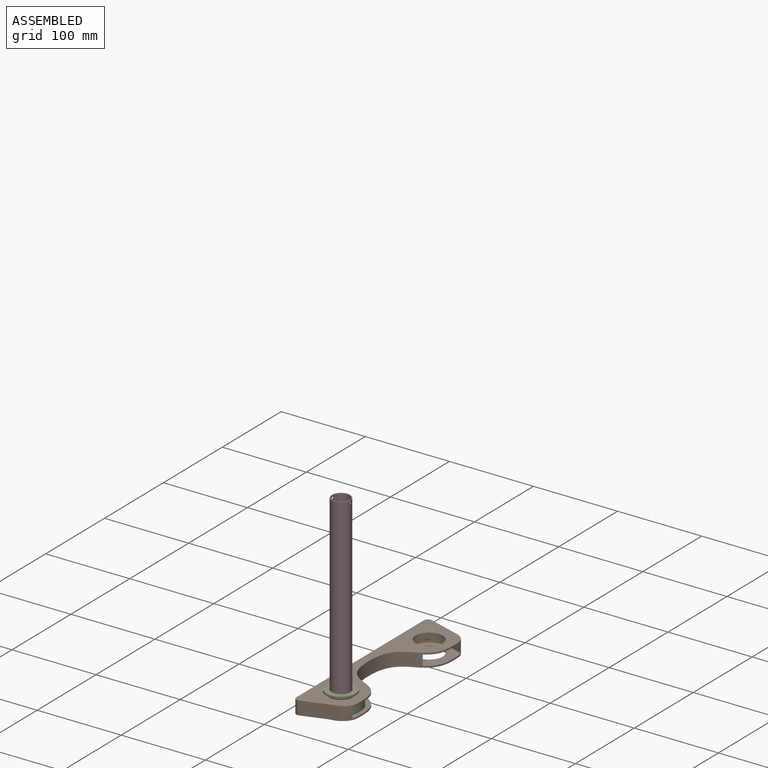
[diagram: assembled view]
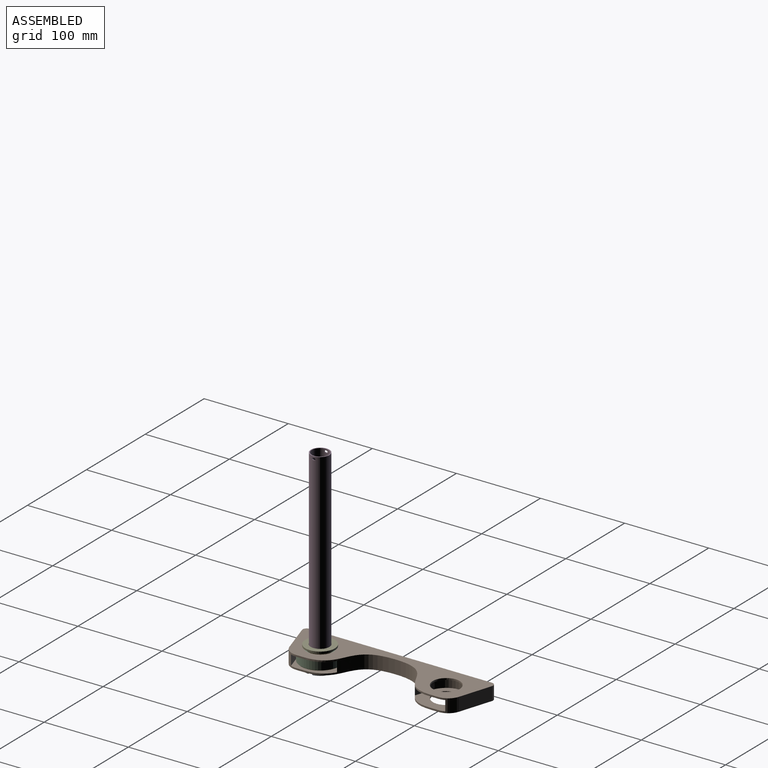
[diagram: assembled view, second angle]
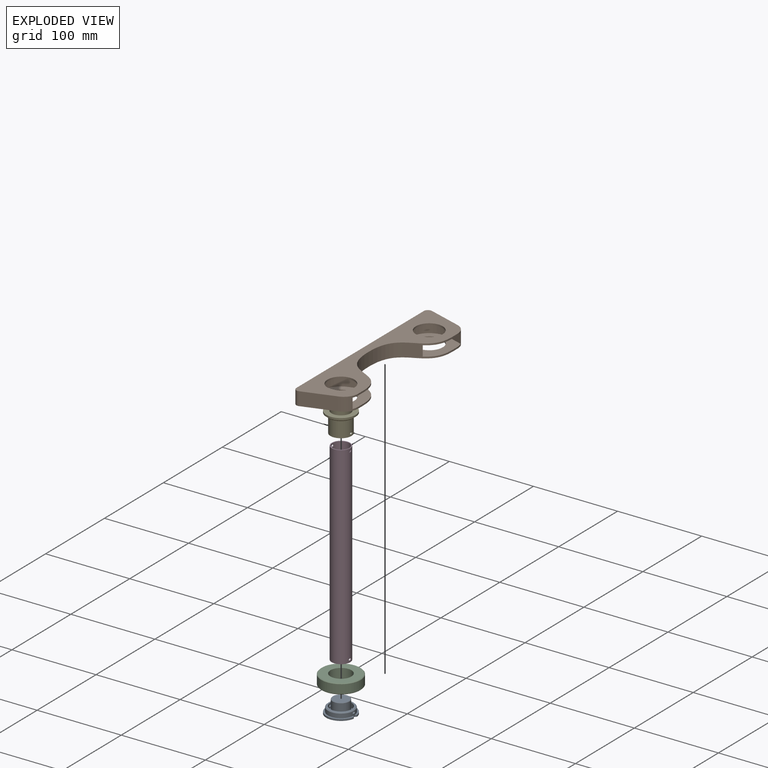
[diagram: exploded view]
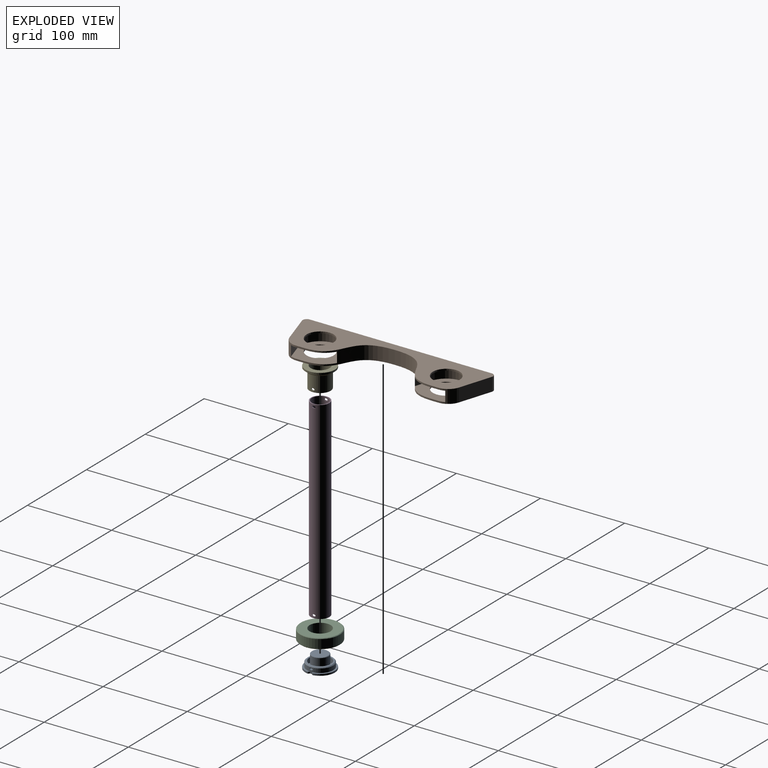
[diagram: exploded view, second angle]
ASSEMBLY  parts=5 mates=8
PART A: 24 faces, bbox 34.3x35x16 mm
  f0: cylinder r=17.5mm len=34.18mm, axis (0,0,1), area 94.8mm2, adj f2,f3,f18,f20
  f1: cylinder r=17.5mm len=34.18mm, axis (0,0,1), area 94.8mm2, adj f2,f10,f17,f19
  f2: plane 35x34.28mm, normal (0,0,-1), area 946.6mm2, adj f0,f1,f6,f16,f17,f18,f19,f20
  f3: plane 34.28x16.89mm, normal (0,0,1), area 95.9mm2, adj f0,f6,f18,f20,f22
  f4: cylinder r=9.95mm len=19.9mm, axis (0,0,-1), area 828.2mm2, adj f7,f13,f14
  f5: cylinder r=12.75mm len=25.5mm, axis (0,0,-1), area 464.8mm2, adj f7,f9,f11,f12
  f6: cylinder r=15.5mm len=31mm, axis (0,0,-1), area 466.2mm2, adj f2,f3,f10,f11,f12,f15,f16,f21
  f7: plane 25.5x25.5mm, normal (0,0,1), area 199.7mm2, adj f4,f5
  f8: plane 18.9x18.9mm, normal (0,0,1), area 280.6mm2, adj f14
  f9: plane 29x29mm, normal (0,0,1), area 149.8mm2, adj f5,f23
  f10: plane 34.28x16.89mm, normal (0,0,1), area 95.9mm2, adj f1,f6,f17,f19,f21
  f11: extruded ~4x2.85mm, area 28.4mm2, adj f5,f6,f15,f16
  f12: extruded ~4x2.91mm, area 28.6mm2, adj f5,f6
  f13: extruded ~19.9x4mm, area 204mm2, adj f4
  f14: cone r=9.45mm half-angle=45deg, axis (0,0,-1), area 43.1mm2, adj f4,f8
  f15: plane 2.7x1.14mm, normal (1,0,0), area 2.4mm2, adj f6,f11,f23
  f16: plane 4.08x2.7mm, normal (1,0,0), area 10.4mm2, adj f2,f6,f11,f17,f18
  f17: cylinder r=2mm len=2.41mm, axis (0,0,1), area 6.5mm2, adj f1,f2,f10,f16
  f18: cylinder r=2mm len=2.41mm, axis (0,0,1), area 6.5mm2, adj f0,f2,f3,f16
  f19: cylinder r=2mm len=2.22mm, axis (0,0,1), area 5.3mm2, adj f1,f2,f10,f21
  f20: cylinder r=2mm len=2.22mm, axis (0,0,1), area 5.3mm2, adj f0,f2,f3,f22
  f21: cylinder r=1mm len=2mm, axis (0,0,1), area 2.3mm2, adj f2,f6,f10,f19
  f22: cylinder r=1mm len=2mm, axis (0,0,1), area 2.3mm2, adj f2,f3,f6,f20
  f23: cone r=14.5mm half-angle=45deg, axis (0,0,-1), area 133.1mm2, adj f6,f9,f15
PART B: 29 faces, bbox 57x226.4x16 mm
  f0: cylinder r=23.6mm len=46.1mm, axis (0,0,-1), area 904.5mm2, adj f21,f22,f25,f26
  f1: plane 9.54x1.9mm, normal (1,0,0), area 18.1mm2, adj f2,f3,f18,f22
  f2: extruded ~75x47mm, area 1111.6mm2, adj f1,f6,f10,f17,f18,f21,f22,f26
  f3: cylinder r=17mm len=16.21mm, axis (0,0,1), area 254.4mm2, adj f1,f10,f11,f17,f18,f21,f22,f25
  f4: cylinder r=23.6mm len=46.1mm, axis (0,0,-1), area 904.5mm2, adj f19,f20,f23,f24
  f5: plane 9.54x1.9mm, normal (1,0,0), area 18.1mm2, adj f6,f7,f17,f19
  f6: extruded ~75x47mm, area 1111.6mm2, adj f2,f5,f14,f17,f18,f19,f20,f23
  f7: cylinder r=17mm len=16.21mm, axis (0,0,1), area 254.4mm2, adj f5,f13,f14,f17,f18,f19,f20,f24
  f8: cylinder r=16mm len=32mm, axis (0,0,-1), area 191mm2, adj f17,f21
  f9: cylinder r=16mm len=32mm, axis (0,0,-1), area 191mm2, adj f17,f19
  f10: plane 9.54x1.9mm, normal (1,0,0), area 18.1mm2, adj f2,f3,f17,f21
  f11: plane 38.61x16mm, normal (0.3,0.95,0), area 647.9mm2, adj f3,f17,f18,f27
  f12: plane 216.36x16mm, normal (-1,0,0), area 3461.7mm2, adj f17,f18,f27,f28
  f13: plane 38.61x16mm, normal (0.3,-0.95,0), area 647.9mm2, adj f7,f17,f18,f28
  f14: plane 9.54x1.9mm, normal (1,0,0), area 18.1mm2, adj f6,f7,f18,f20
  f15: cylinder r=16mm len=32mm, axis (0,0,-1), area 191mm2, adj f18,f22
  f16: cylinder r=16mm len=32mm, axis (0,0,-1), area 191mm2, adj f18,f20
  f17: plane 226.36x57mm, normal (0,0,1), area 6525.5mm2, adj f2,f3,f5,f6,f7,f8,f9,f10
  f18: plane 226.36x57mm, normal (0,0,-1), area 6525.5mm2, adj f1,f2,f3,f6,f7,f11,f12,f13
  f19: plane 53.51x50.77mm, normal (0,0,-1), area 1266.6mm2, adj f4,f5,f6,f7,f9,f23,f24
  f20: plane 53.51x50.77mm, normal (0,0,1), area 1266.6mm2, adj f4,f6,f7,f14,f16,f23,f24
  f21: plane 53.51x50.77mm, normal (0,0,-1), area 1266.6mm2, adj f0,f2,f3,f8,f10,f25,f26
  f22: plane 53.51x50.77mm, normal (0,0,1), area 1266.6mm2, adj f0,f1,f2,f3,f15,f25,f26
  f23: plane 19.47x12.2mm, normal (0.3,-0.95,0), area 249mm2, adj f4,f6,f19,f20
  f24: plane 18.5x12.2mm, normal (-0.3,0.95,0), area 236.7mm2, adj f4,f7,f19,f20
  f25: plane 18.5x12.2mm, normal (-0.3,-0.95,0), area 236.7mm2, adj f0,f3,f21,f22
  f26: plane 19.47x12.2mm, normal (0.3,0.95,0), area 249mm2, adj f0,f2,f21,f22
  f27: cylinder r=5mm len=16mm, axis (0,0,-1), area 150.1mm2, adj f11,f12,f17,f18
  f28: cylinder r=5mm len=16mm, axis (0,0,1), area 150.1mm2, adj f12,f13,f17,f18
PART C: 10 faces, bbox 47x47x12 mm
  f0: plane 32x32mm, normal (0,0,-1), area 313.4mm2, adj f2,f7
  f1: cylinder r=23.5mm len=47mm, axis (0,0,-1), area 1565.1mm2, adj f5,f6
  f2: cylinder r=12.5mm len=25mm, axis (0,0,-1), area 942.5mm2, adj f0,f3
  f3: plane 45.6x45.6mm, normal (0,0,1), area 1142.3mm2, adj f2,f5
  f4: plane 45.6x45.6mm, normal (0,0,-1), area 180.9mm2, adj f6,f8
  f5: cone r=22.8mm half-angle=45deg, axis (0,0,-1), area 144mm2, adj f1,f3
  f6: cone r=23.5mm half-angle=45deg, axis (0,0,1), area 144mm2, adj f1,f4
  f7: cylinder r=16mm len=32mm, axis (0,0,-1), area 10.1mm2, adj f0,f9
  f8: cylinder r=21.5mm len=43mm, axis (0,0,-1), area 13.5mm2, adj f4,f9
  f9: plane 43x43mm, normal (0,0,-1), area 648mm2, adj f7,f8
PART D: 8 faces, bbox 22x22x230 mm
  f0: cylinder r=9.95mm len=230mm, axis (0,0,-1), area 14347.4mm2, adj f2,f3,f4,f5,f6,f7
  f1: cylinder r=11mm len=230mm, axis (0,0,-1), area 15864.8mm2, adj f2,f3,f4,f5,f6,f7
  f2: plane 22x22mm, normal (0,0,-1), area 69.1mm2, adj f0,f1
  f3: extruded ~4x2.5mm, area 11mm2, adj f0,f1
  f4: extruded ~4x2.5mm, area 11mm2, adj f0,f1
  f5: plane 22x22mm, normal (0,0,1), area 69.1mm2, adj f0,f1
  f6: extruded ~4x2.5mm, area 11mm2, adj f0,f1
  f7: extruded ~4x2.5mm, area 11mm2, adj f0,f1
PART E: 11 faces, bbox 35x35x24 mm
  f0: cylinder r=11.25mm len=24mm, axis (0,0,-1), area 1680.7mm2, adj f3,f7,f8,f9
  f1: cylinder r=12.5mm len=25mm, axis (0,0,1), area 1515.6mm2, adj f6,f7,f8,f9
  f2: cylinder r=17.5mm len=35mm, axis (0,0,-1), area 219.9mm2, adj f3,f4
  f3: plane 35x35mm, normal (0,0,1), area 564.5mm2, adj f0,f2
  f4: plane 35x35mm, normal (0,0,-1), area 207.3mm2, adj f2,f5
  f5: cylinder r=15.5mm len=31mm, axis (0,0,1), area 146.1mm2, adj f4,f10
  f6: plane 29x29mm, normal (0,0,-1), area 169.6mm2, adj f1,f10
  f7: plane 25x25mm, normal (0,0,-1), area 93.3mm2, adj f0,f1
  f8: extruded ~4x2.5mm, area 13mm2, adj f0,f1
  f9: extruded ~4x2.5mm, area 13mm2, adj f0,f1
  f10: cone r=15.5mm half-angle=45deg, axis (0,0,1), area 133.3mm2, adj f5,f6
PLACE A t=(-347.26,-45,61.86)mm
PLACE B rot(axis=(0.02,-0.99,0.16),0deg) t=(-377.1,145,65.96)mm
PLACE C rot(axis=(0.02,-0.99,0.16),0deg) t=(-347.26,-45,67.86)mm
PLACE D rot(axis=(0.02,-0.99,0.16),0deg) t=(-347.26,-45,61.86)mm
PLACE E rot(axis=(0.02,-0.99,0.16),0deg) t=(-347.26,-45,61.86)mm
MATE planar A.f0 <-> D.f1  axis (0,0,1) through (-347.26,-45,61.86)mm
MATE slider E.f0 <-> D.f1  axis (0,0,-1) through (-347.26,-45,73.86)mm
MATE slider A.f4 <-> D.f0  axis (0,0,-1) through (-347.26,-45,68.61)mm
MATE planar B.f20 <-> C.f8  axis (0,0,1) through (-342.47,-43.09,67.86)mm
MATE slider C.f2 <-> E.f1  axis (0,0,-1) through (-347.26,-45,79.86)mm
MATE slider C.f1 <-> B.f4  axis (0,0,-1) through (-347.26,-45,73.86)mm
MATE planar A.f0 <-> C.f8  axis (0,0,1) through (-347.26,-45,67.86)mm
MATE planar E.f2 <-> A.f0  axis (0,0,-1) through (-347.26,-45,61.86)mm
